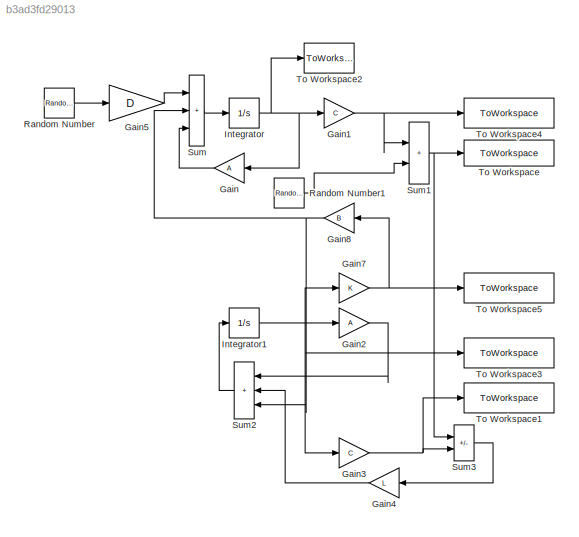
MODEL slx_b3ad3fd29013
KIND model
CONFIG AbsTol = auto
CONFIG EnableMultiTasking = off
CONFIG FixedStep = auto
CONFIG MaxStep = 0.001
CONFIG MinStep = auto
CONFIG RelTol = 1e-3
CONFIG SampleTimeConstraint = Unconstrained
CONFIG SolverName = VariableStepAuto
CONFIG StartTime = 0.0
CONFIG StopTime = 5
BLOCK [Gain] Gain
  Gain = A
  Multiplication = Matrix(K*u)
  NameLocation = top
BLOCK [Gain] Gain1
  Gain = C
  Multiplication = Matrix(K*u)
BLOCK [Gain] Gain2
  Gain = A
  Multiplication = Matrix(K*u)
BLOCK [Gain] Gain3
  Gain = C
  Multiplication = Matrix(K*u)
BLOCK [Gain] Gain4
  Gain = L
  Multiplication = Matrix(K*u)
  NameLocation = top
BLOCK [Gain] Gain5
  Gain = D
  Multiplication = Matrix(K*u) (u vector)
BLOCK [Gain] Gain7
  Gain = K
  Multiplication = Matrix(K*u)
BLOCK [Gain] Gain8
  Gain = B
  Multiplication = Matrix(K*u)
  NameLocation = top
BLOCK [Integrator] Integrator
  InitialCondition = [-1;0.1;10;1;5;1]
  Ports = [1, 1]
BLOCK [Integrator] Integrator1
  InitialCondition = [1;0;1;0;0;2]
  Ports = [1, 1]
BLOCK [RandomNumber] Random Number
  SampleTime = 0.1
  Seed = [5 1]
  Variance = E_f
BLOCK [RandomNumber] Random Number1
  SampleTime = 0.1
  Seed = 1
  Variance = E_eps
BLOCK [Sum] Sum
  IconShape = rectangular
  Inputs = |+++
  Ports = [3, 1]
BLOCK [Sum] Sum1
  IconShape = rectangular
  Inputs = |++
  Ports = [2, 1]
BLOCK [Sum] Sum2
  IconShape = rectangular
  Inputs = |+++
  NameLocation = top
  Ports = [3, 1]
BLOCK [Sum] Sum3
  IconShape = rectangular
  Inputs = |-+
  Ports = [2, 1]
BLOCK [ToWorkspace] To Workspace
  FixptAsFi = on
  MaxDataPoints = inf
  Ports = [1]
  SampleTime = -1
  SaveFormat = Timeseries
  VariableName = y
BLOCK [ToWorkspace] To Workspace1
  FixptAsFi = on
  MaxDataPoints = inf
  Ports = [1]
  SampleTime = -1
  SaveFormat = Timeseries
  VariableName = hat_y
BLOCK [ToWorkspace] To Workspace2
  FixptAsFi = on
  MaxDataPoints = inf
  Ports = [1]
  SampleTime = -1
  SaveFormat = Timeseries
  VariableName = x
BLOCK [ToWorkspace] To Workspace3
  FixptAsFi = on
  MaxDataPoints = inf
  Ports = [1]
  SampleTime = -1
  SaveFormat = Timeseries
  VariableName = hat_x
BLOCK [ToWorkspace] To Workspace4
  FixptAsFi = on
  MaxDataPoints = inf
  Ports = [1]
  SampleTime = -1
  SaveFormat = Timeseries
  VariableName = real_y
BLOCK [ToWorkspace] To Workspace5
  FixptAsFi = on
  MaxDataPoints = inf
  Ports = [1]
  SampleTime = -1
  SaveFormat = Timeseries
  VariableName = u
NET Gain1:1 -> Sum1:1, To Workspace4:1
LINE Gain2:1 -> Sum2:1
NET Gain3:1 -> Sum3:2, To Workspace1:1
LINE Gain4:1 -> Sum2:2
LINE Gain5:1 -> Sum:1
NET Gain7:1 -> Gain8:1, To Workspace5:1
NET Gain8:1 -> Sum2:3, Sum:2
LINE Gain:1 -> Sum:3
NET Integrator1:1 -> Gain2:1, Gain3:1, Gain7:1, To Workspace3:1
NET Integrator:1 -> Gain1:1, Gain:1, To Workspace2:1
LINE Random Number1:1 -> Sum1:2
LINE Random Number:1 -> Gain5:1
NET Sum1:1 -> Sum3:1, To Workspace:1
LINE Sum2:1 -> Integrator1:1
LINE Sum3:1 -> Gain4:1
LINE Sum:1 -> Integrator:1
note: NET lines group one-source signal fan-out (src -> all destinations, sorted); 1:1 wires keep LINE
